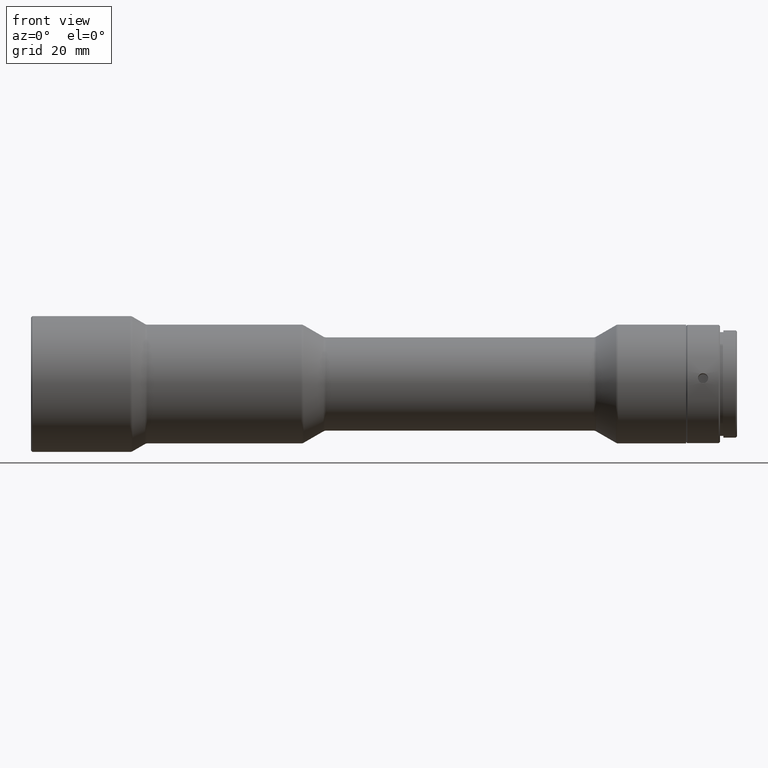
[diagram: clean part render]
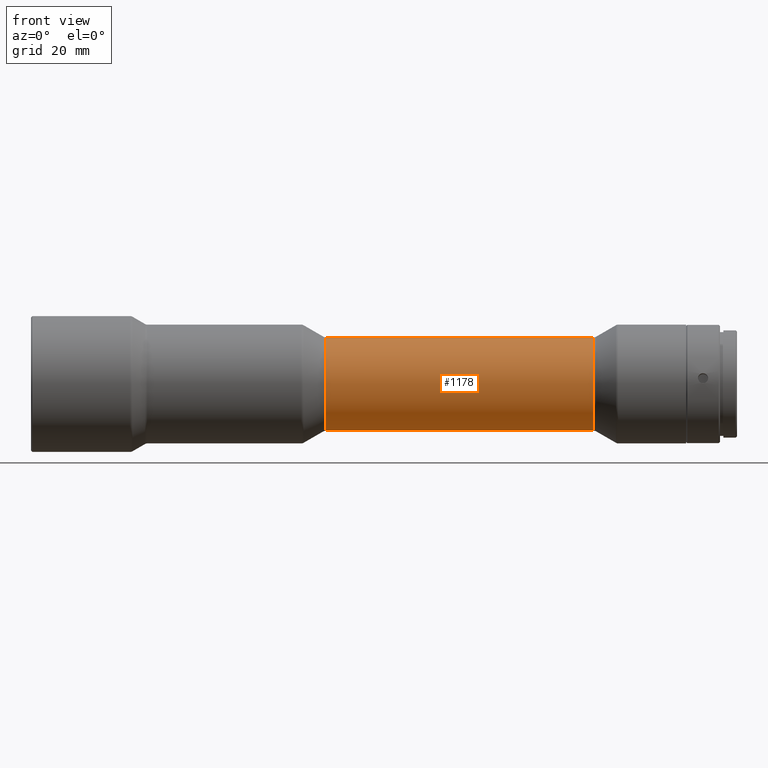
[diagram: same view with one face highlighted and labeled with its STEP entity id]
A machine part, front view. The second image highlights one B-rep face of the part: STEP entity #1178.
In plain terms, the highlighted cylindrical surface (partial cylindrical patch) has radius 11 mm, axis along (-1, -0, -0).
Its self-contained STEP definition (entity closure, byte-faithful):
#39 = DIRECTION ( 'NONE',  ( -1.000000000000000000, -0.0000000000000000000, -0.0000000000000000000 ) ) ;
#57 = VERTEX_POINT ( 'NONE', #1070 ) ;
#76 = FACE_OUTER_BOUND ( 'NONE', #731, .T. ) ;
#211 = CARTESIAN_POINT ( 'NONE',  ( 69.46794919243112100, 1.355315057083211700E-015, 11.00000000000000500 ) ) ;
#259 = CARTESIAN_POINT ( 'NONE',  ( 132.6748293848622800, 2.447091890248405500E-016, 0.0000000000000000000 ) ) ;
#269 = EDGE_CURVE ( 'NONE', #57, #941, #716, .T. ) ;
#345 = CYLINDRICAL_SURFACE ( 'NONE', #1606, 11.00000000000000000 ) ;
#372 = AXIS2_PLACEMENT_3D ( 'NONE', #259, #560, #838 ) ;
#390 = EDGE_CURVE ( 'NONE', #1768, #57, #613, .T. ) ;
#461 = DIRECTION ( 'NONE',  ( -1.000000000000000000, -0.0000000000000000000, -0.0000000000000000000 ) ) ;
#462 = CARTESIAN_POINT ( 'NONE',  ( 69.46794919243112100, 1.084924317714181800E-032, -9.568338047540855000E-032 ) ) ;
#465 = DIRECTION ( 'NONE',  ( 0.0000000000000000000, 0.0000000000000000000, 1.000000000000000000 ) ) ;
#508 = CARTESIAN_POINT ( 'NONE',  ( 61.19893100000000900, 2.447091890248405500E-016, 11.00000000000000000 ) ) ;
#511 = ORIENTED_EDGE ( 'NONE', *, *, #1618, .F. ) ;
#560 = DIRECTION ( 'NONE',  ( -1.000000000000000000, -0.0000000000000000000, -0.0000000000000000000 ) ) ;
#613 = CIRCLE ( 'NONE', #372, 11.00000000000000000 ) ;
#686 = ORIENTED_EDGE ( 'NONE', *, *, #1511, .T. ) ;
#716 = LINE ( 'NONE', #508, #1361 ) ;
#723 = LINE ( 'NONE', #1595, #1128 ) ;
#731 = EDGE_LOOP ( 'NONE', ( #511, #1223, #1536, #686 ) ) ;
#788 = AXIS2_PLACEMENT_3D ( 'NONE', #462, #1164, #1306 ) ;
#838 = DIRECTION ( 'NONE',  ( 0.0000000000000000000, 0.0000000000000000000, 1.000000000000000000 ) ) ;
#941 = VERTEX_POINT ( 'NONE', #211 ) ;
#1070 = CARTESIAN_POINT ( 'NONE',  ( 132.6748293848622800, 2.447091890248405500E-016, 11.00000000000000000 ) ) ;
#1089 = DIRECTION ( 'NONE',  ( -1.000000000000000000, -0.0000000000000000000, -0.0000000000000000000 ) ) ;
#1128 = VECTOR ( 'NONE', #461, 1000.000000000000000 ) ;
#1164 = DIRECTION ( 'NONE',  ( 1.000000000000000000, -0.0000000000000000000, -0.0000000000000000000 ) ) ;
#1178 = ADVANCED_FACE ( 'NONE', ( #76 ), #345, .T. ) ;
#1223 = ORIENTED_EDGE ( 'NONE', *, *, #390, .T. ) ;
#1306 = DIRECTION ( 'NONE',  ( 0.0000000000000000000, 0.0000000000000000000, -1.000000000000000000 ) ) ;
#1355 = CARTESIAN_POINT ( 'NONE',  ( 132.6748293848622800, 1.591820668086929100E-015, -11.00000000000000000 ) ) ;
#1361 = VECTOR ( 'NONE', #1089, 1000.000000000000000 ) ;
#1511 = EDGE_CURVE ( 'NONE', #941, #1587, #1747, .T. ) ;
#1536 = ORIENTED_EDGE ( 'NONE', *, *, #269, .T. ) ;
#1587 = VERTEX_POINT ( 'NONE', #1733 ) ;
#1595 = CARTESIAN_POINT ( 'NONE',  ( 61.19893100000000900, 1.591820668086929100E-015, -11.00000000000000000 ) ) ;
#1603 = CARTESIAN_POINT ( 'NONE',  ( 61.19893100000000900, 2.447091890248405500E-016, 0.0000000000000000000 ) ) ;
#1606 = AXIS2_PLACEMENT_3D ( 'NONE', #1603, #39, #465 ) ;
#1618 = EDGE_CURVE ( 'NONE', #1768, #1587, #723, .T. ) ;
#1733 = CARTESIAN_POINT ( 'NONE',  ( 69.46794919243112100, 1.084924317714181800E-032, -11.00000000000000500 ) ) ;
#1747 = CIRCLE ( 'NONE', #788, 11.00000000000000500 ) ;
#1768 = VERTEX_POINT ( 'NONE', #1355 ) ;